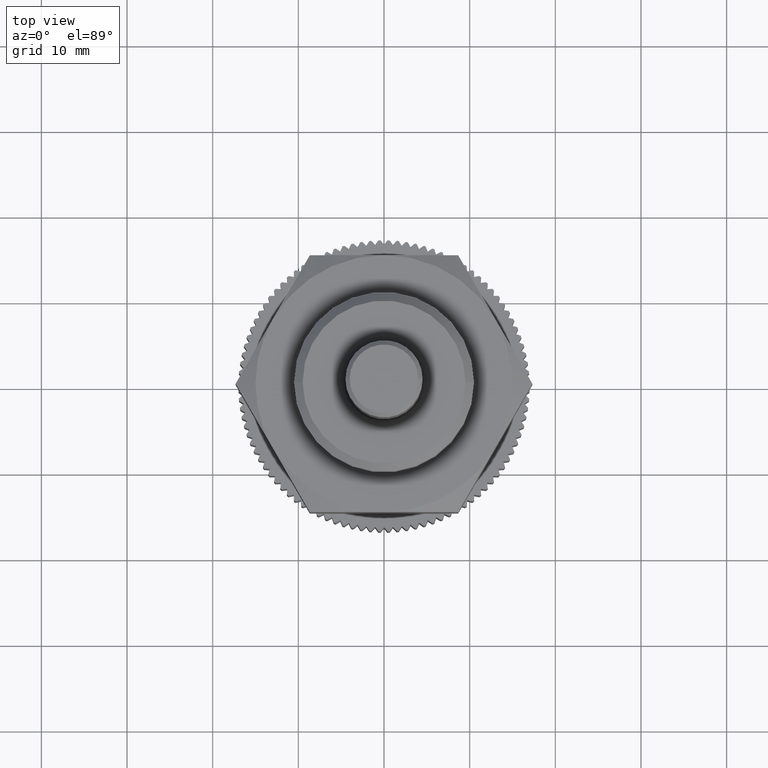
[diagram: clean part render]
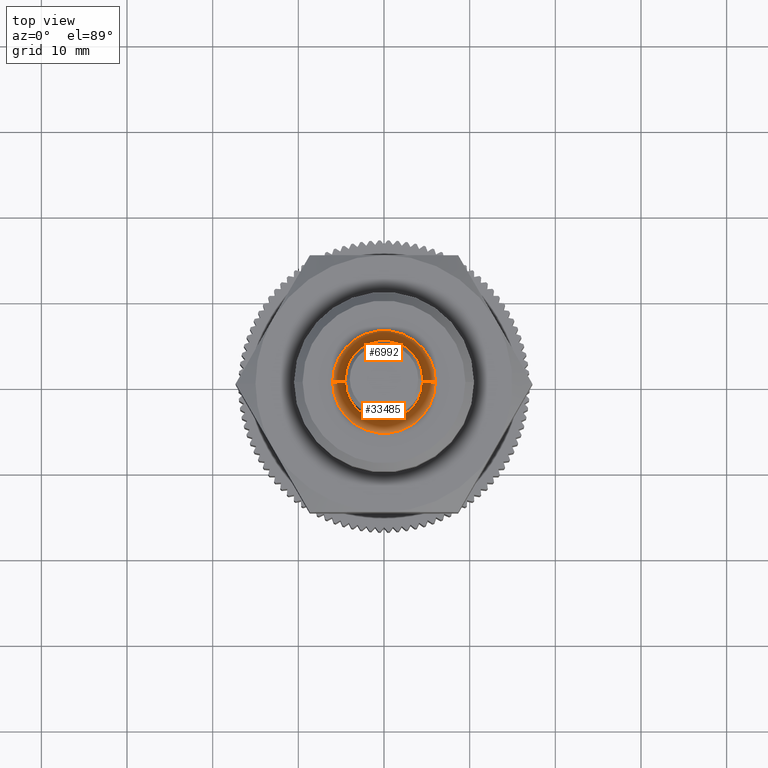
[diagram: same view with one multi-face feature highlighted, each face labeled with its STEP entity id]
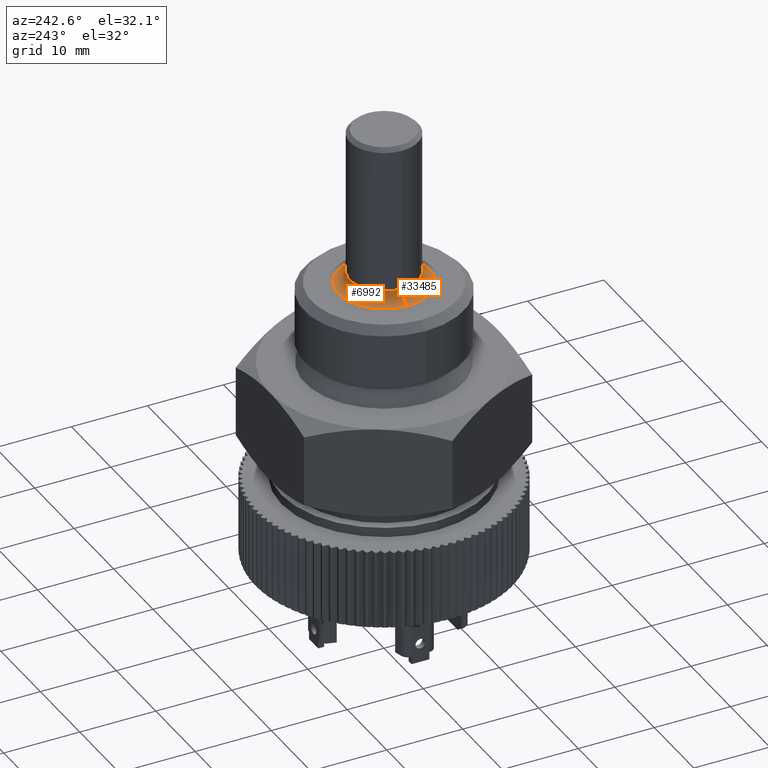
[diagram: same view with one multi-face feature highlighted, each face labeled with its STEP entity id]
A machine part, top view. The highlighted faces form ONE feature: a constant-radius fillet chain: 2 tangent blend faces with common blend radius 1.5 mm. The faces share edges in the B-rep.
A second angle (auxiliary view) of the same feature is appended — it is thin or edge-on in the first view.
Their STEP definitions:
[1] entity #6992 (Torus):
#237 = VERTEX_POINT ( 'NONE', #14923 ) ;
#651 = FACE_OUTER_BOUND ( 'NONE', #12365, .T. ) ;
#1598 = VERTEX_POINT ( 'NONE', #19317 ) ;
#1670 = CARTESIAN_POINT ( 'NONE',  ( 0.0000000000000000000, 0.0000000000000000000, 12.50000000000000000 ) ) ;
#2063 = AXIS2_PLACEMENT_3D ( 'NONE', #30869, #17616, #11629 ) ;
#3300 = VERTEX_POINT ( 'NONE', #24656 ) ;
#4895 = DIRECTION ( 'NONE',  ( -1.000000000000000000, 0.0000000000000000000, 0.0000000000000000000 ) ) ;
#6375 = AXIS2_PLACEMENT_3D ( 'NONE', #1670, #6707, #33502 ) ;
#6397 = ORIENTED_EDGE ( 'NONE', *, *, #23651, .F. ) ;
#6707 = DIRECTION ( 'NONE',  ( 0.0000000000000000000, 0.0000000000000000000, -1.000000000000000000 ) ) ;
#6868 = CIRCLE ( 'NONE', #23548, 6.000000000000000000 ) ;
#6992 = ADVANCED_FACE ( 'NONE', ( #651 ), #17448, .F. ) ;
#8431 = AXIS2_PLACEMENT_3D ( 'NONE', #26323, #13055, #15826 ) ;
#9236 = EDGE_CURVE ( 'NONE', #237, #3300, #17606, .T. ) ;
#11629 = DIRECTION ( 'NONE',  ( -1.000000000000000000, -1.224646799147353454E-16, 0.0000000000000000000 ) ) ;
#12365 = EDGE_LOOP ( 'NONE', ( #17362, #32820, #34226, #6397 ) ) ;
#13055 = DIRECTION ( 'NONE',  ( -0.0000000000000000000, -0.0000000000000000000, 1.000000000000000000 ) ) ;
#14923 = CARTESIAN_POINT ( 'NONE',  ( -6.000000000000000000, 0.0000000000000000000, 11.00000000000000178 ) ) ;
#15826 = DIRECTION ( 'NONE',  ( -1.000000000000000000, 0.0000000000000000000, 0.0000000000000000000 ) ) ;
#17362 = ORIENTED_EDGE ( 'NONE', *, *, #25600, .F. ) ;
#17448 = TOROIDAL_SURFACE ( 'NONE', #6375, 6.000000000000000000, 1.500000000000000000 ) ;
#17606 = CIRCLE ( 'NONE', #30438, 1.499999999999999556 ) ;
#17616 = DIRECTION ( 'NONE',  ( -1.224646799147353207E-16, 1.000000000000000000, 0.0000000000000000000 ) ) ;
#18584 = CARTESIAN_POINT ( 'NONE',  ( 0.0000000000000000000, 0.0000000000000000000, 11.00000000000000178 ) ) ;
#19317 = CARTESIAN_POINT ( 'NONE',  ( 6.000000000000000000, 7.347880794884119736E-16, 11.00000000000000178 ) ) ;
#23449 = CIRCLE ( 'NONE', #8431, 4.500000000000000888 ) ;
#23548 = AXIS2_PLACEMENT_3D ( 'NONE', #18584, #29420, #4895 ) ;
#23651 = EDGE_CURVE ( 'NONE', #30376, #3300, #23449, .T. ) ;
#24656 = CARTESIAN_POINT ( 'NONE',  ( -4.500000000000000888, 5.510910596163089556E-16, 12.50000000000000000 ) ) ;
#24745 = EDGE_CURVE ( 'NONE', #237, #1598, #6868, .T. ) ;
#25600 = EDGE_CURVE ( 'NONE', #1598, #30376, #31519, .T. ) ;
#25604 = DIRECTION ( 'NONE',  ( -0.0000000000000000000, -1.000000000000000000, -0.0000000000000000000 ) ) ;
#26323 = CARTESIAN_POINT ( 'NONE',  ( 0.0000000000000000000, 0.0000000000000000000, 12.50000000000000000 ) ) ;
#28082 = CARTESIAN_POINT ( 'NONE',  ( 4.500000000000000888, 0.0000000000000000000, 12.50000000000000000 ) ) ;
#28398 = DIRECTION ( 'NONE',  ( 0.0000000000000000000, 0.0000000000000000000, -1.000000000000000000 ) ) ;
#29420 = DIRECTION ( 'NONE',  ( 0.0000000000000000000, 0.0000000000000000000, -1.000000000000000000 ) ) ;
#30376 = VERTEX_POINT ( 'NONE', #28082 ) ;
#30438 = AXIS2_PLACEMENT_3D ( 'NONE', #33244, #25604, #28398 ) ;
#30869 = CARTESIAN_POINT ( 'NONE',  ( 6.000000000000000000, 7.347880794884119736E-16, 12.50000000000000000 ) ) ;
#31519 = CIRCLE ( 'NONE', #2063, 1.499999999999999556 ) ;
#32820 = ORIENTED_EDGE ( 'NONE', *, *, #24745, .F. ) ;
#33244 = CARTESIAN_POINT ( 'NONE',  ( -6.000000000000000000, 0.0000000000000000000, 12.50000000000000000 ) ) ;
#33502 = DIRECTION ( 'NONE',  ( -1.000000000000000000, 0.0000000000000000000, 0.0000000000000000000 ) ) ;
#34226 = ORIENTED_EDGE ( 'NONE', *, *, #9236, .T. ) ;
[2] entity #33485 (Torus):
#237 = VERTEX_POINT ( 'NONE', #14923 ) ;
#734 = DIRECTION ( 'NONE',  ( -1.000000000000000000, 0.0000000000000000000, 0.0000000000000000000 ) ) ;
#1572 = CIRCLE ( 'NONE', #20424, 4.500000000000000888 ) ;
#1598 = VERTEX_POINT ( 'NONE', #19317 ) ;
#2063 = AXIS2_PLACEMENT_3D ( 'NONE', #30869, #17616, #11629 ) ;
#3300 = VERTEX_POINT ( 'NONE', #24656 ) ;
#3426 = CIRCLE ( 'NONE', #21760, 6.000000000000000000 ) ;
#4653 = EDGE_CURVE ( 'NONE', #1598, #237, #3426, .T. ) ;
#6982 = CARTESIAN_POINT ( 'NONE',  ( 0.0000000000000000000, 0.0000000000000000000, 11.00000000000000178 ) ) ;
#7512 = DIRECTION ( 'NONE',  ( 0.0000000000000000000, 0.0000000000000000000, -1.000000000000000000 ) ) ;
#8529 = DIRECTION ( 'NONE',  ( -0.0000000000000000000, -0.0000000000000000000, 1.000000000000000000 ) ) ;
#9236 = EDGE_CURVE ( 'NONE', #237, #3300, #17606, .T. ) ;
#10038 = DIRECTION ( 'NONE',  ( 0.0000000000000000000, 0.0000000000000000000, -1.000000000000000000 ) ) ;
#11547 = ORIENTED_EDGE ( 'NONE', *, *, #9236, .F. ) ;
#11629 = DIRECTION ( 'NONE',  ( -1.000000000000000000, -1.224646799147353454E-16, 0.0000000000000000000 ) ) ;
#12378 = DIRECTION ( 'NONE',  ( -1.000000000000000000, 0.0000000000000000000, 0.0000000000000000000 ) ) ;
#14923 = CARTESIAN_POINT ( 'NONE',  ( -6.000000000000000000, 0.0000000000000000000, 11.00000000000000178 ) ) ;
#15936 = TOROIDAL_SURFACE ( 'NONE', #33749, 6.000000000000000000, 1.500000000000000000 ) ;
#17606 = CIRCLE ( 'NONE', #30438, 1.499999999999999556 ) ;
#17616 = DIRECTION ( 'NONE',  ( -1.224646799147353207E-16, 1.000000000000000000, 0.0000000000000000000 ) ) ;
#18817 = ORIENTED_EDGE ( 'NONE', *, *, #20201, .F. ) ;
#19317 = CARTESIAN_POINT ( 'NONE',  ( 6.000000000000000000, 7.347880794884119736E-16, 11.00000000000000178 ) ) ;
#20201 = EDGE_CURVE ( 'NONE', #3300, #30376, #1572, .T. ) ;
#20424 = AXIS2_PLACEMENT_3D ( 'NONE', #24576, #8529, #734 ) ;
#21760 = AXIS2_PLACEMENT_3D ( 'NONE', #6982, #7512, #12378 ) ;
#21889 = ORIENTED_EDGE ( 'NONE', *, *, #4653, .F. ) ;
#22390 = EDGE_LOOP ( 'NONE', ( #21889, #28739, #18817, #11547 ) ) ;
#24576 = CARTESIAN_POINT ( 'NONE',  ( 0.0000000000000000000, 0.0000000000000000000, 12.50000000000000000 ) ) ;
#24656 = CARTESIAN_POINT ( 'NONE',  ( -4.500000000000000888, 5.510910596163089556E-16, 12.50000000000000000 ) ) ;
#25600 = EDGE_CURVE ( 'NONE', #1598, #30376, #31519, .T. ) ;
#25604 = DIRECTION ( 'NONE',  ( -0.0000000000000000000, -1.000000000000000000, -0.0000000000000000000 ) ) ;
#28082 = CARTESIAN_POINT ( 'NONE',  ( 4.500000000000000888, 0.0000000000000000000, 12.50000000000000000 ) ) ;
#28398 = DIRECTION ( 'NONE',  ( 0.0000000000000000000, 0.0000000000000000000, -1.000000000000000000 ) ) ;
#28739 = ORIENTED_EDGE ( 'NONE', *, *, #25600, .T. ) ;
#30376 = VERTEX_POINT ( 'NONE', #28082 ) ;
#30438 = AXIS2_PLACEMENT_3D ( 'NONE', #33244, #25604, #28398 ) ;
#30869 = CARTESIAN_POINT ( 'NONE',  ( 6.000000000000000000, 7.347880794884119736E-16, 12.50000000000000000 ) ) ;
#31281 = CARTESIAN_POINT ( 'NONE',  ( 0.0000000000000000000, 0.0000000000000000000, 12.50000000000000000 ) ) ;
#31519 = CIRCLE ( 'NONE', #2063, 1.499999999999999556 ) ;
#31634 = DIRECTION ( 'NONE',  ( -1.000000000000000000, 0.0000000000000000000, 0.0000000000000000000 ) ) ;
#33244 = CARTESIAN_POINT ( 'NONE',  ( -6.000000000000000000, 0.0000000000000000000, 12.50000000000000000 ) ) ;
#33485 = ADVANCED_FACE ( 'NONE', ( #34231 ), #15936, .F. ) ;
#33749 = AXIS2_PLACEMENT_3D ( 'NONE', #31281, #10038, #31634 ) ;
#34231 = FACE_OUTER_BOUND ( 'NONE', #22390, .T. ) ;